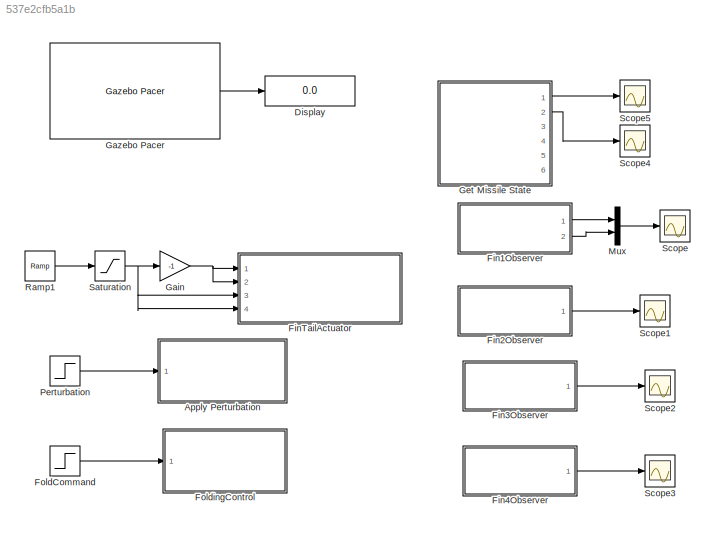
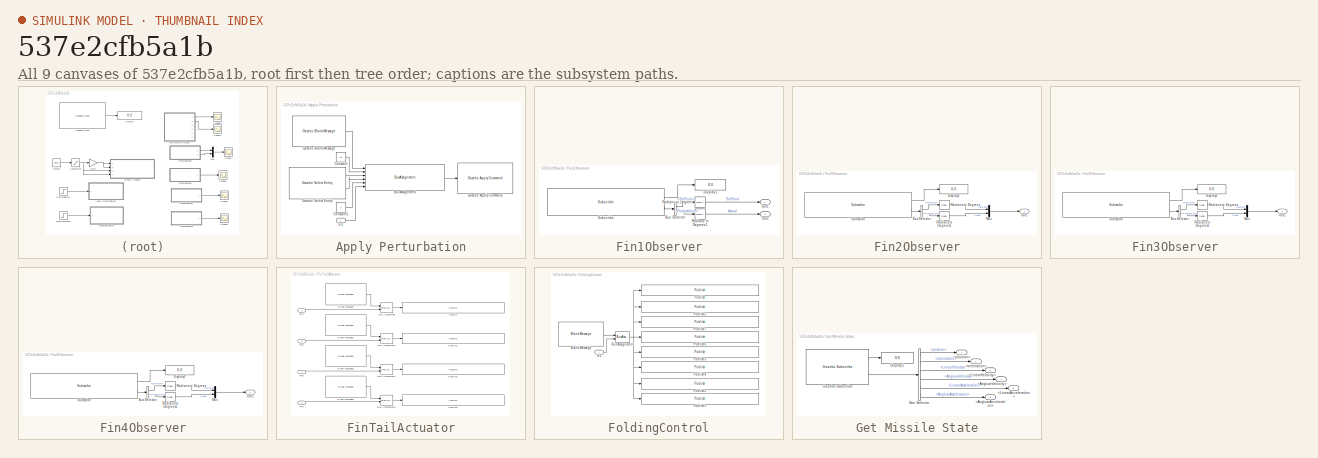
[diagram: thumbnail index - all 9 canvases of the model, root first then tree order]
MODEL slx_537e2cfb5a1b
KIND model
CONFIG AbsTol = auto
CONFIG EnableMultiTasking = off
CONFIG FixedStep = 0.001
CONFIG MaxStep = auto
CONFIG MinStep = auto
CONFIG RelTol = 1e-3
CONFIG SampleTimeConstraint = Unconstrained
CONFIG SolverName = FixedStepAuto
CONFIG StartTime = 0.0
CONFIG StopTime = 2
BLOCK [SubSystem] Apply Perturbation
  Ports = [1]
  RequestExecContextInheritance = off
BLOCK [BusAssignment] Apply Perturbation/Bus Assignment
  AssignedSignals = duration.seconds,model_name,joint_name,index,effort
  Ports = [6, 1]
BLOCK [Constant] Apply Perturbation/Constant
  Value = 10
BLOCK [Constant] Apply Perturbation/Constant1
  OutDataTypeStr = uint32
  Value = 0
BLOCK [Reference] Apply Perturbation/Gazebo Apply Command  REF=robotgazebolib/Gazebo Apply Command
  Ports = [1]
  SourceBlock = robotgazebolib/Gazebo Apply Command
  SourceProductBaseCode = RO
  SourceType = Gazebo Apply Command
BLOCK [Reference] Apply Perturbation/Gazebo Blank Message  REF=robotgazebolib/Gazebo Blank Message
  Ports = [0, 1]
  SourceBlock = robotgazebolib/Gazebo Blank Message
  SourceProductBaseCode = RO
  SourceType = Gazebo Blank Message
BLOCK [Reference] Apply Perturbation/Gazebo Select Entity  REF=robotgazebolib/Gazebo Select Entity
  Ports = [0, 2]
  SourceBlock = robotgazebolib/Gazebo Select Entity
  SourceProductBaseCode = RO
  SourceType = Gazebo Select Entity
BLOCK [Inport] Apply Perturbation/In1
BLOCK [Display] Display
  Decimation = 1
  Ports = [1]
BLOCK [SubSystem] Fin1Observer
  Ports = [0, 2]
  RequestExecContextInheritance = off
BLOCK [BusSelector] Fin1Observer/Bus Selector
  OutputSignals = SetPoint,ProcessValue
  Ports = [1, 2]
BLOCK [Display] Fin1Observer/Display1
  Decimation = 1
  Ports = [1]
BLOCK [Outport] Fin1Observer/Out1
BLOCK [Outport] Fin1Observer/Out2
  Port = 2
BLOCK [Reference] Fin1Observer/Radians to Degrees  REF=simulink_extras/Transformations/Radians
to Degrees
  Ports = [1, 1]
  SourceBlock = simulink_extras/Transformations/Radians\nto Degrees
  SourceProductBaseCode = SL
  SourceType = RadiansToDegrees
BLOCK [Reference] Fin1Observer/Radians to Degrees1  REF=simulink_extras/Transformations/Radians
to Degrees
  Ports = [1, 1]
  SourceBlock = simulink_extras/Transformations/Radians\nto Degrees
  SourceProductBaseCode = SL
  SourceType = RadiansToDegrees
BLOCK [Reference] Fin1Observer/Subscribe  REF=robotlib/Subscribe
  Ports = [0, 2]
  SourceBlock = robotlib/Subscribe
  SourceProductBaseCode = RR
  SourceType = ROS Subscribe
BLOCK [SubSystem] Fin2Observer
  Ports = [0, 1]
  RequestExecContextInheritance = off
BLOCK [BusSelector] Fin2Observer/Bus Selector
  OutputSignals = SetPoint,ProcessValue
  Ports = [1, 2]
BLOCK [Display] Fin2Observer/Display1
  Decimation = 1
  Ports = [1]
BLOCK [Mux] Fin2Observer/Mux
  DisplayOption = bar
  Inputs = 2
  Ports = [2, 1]
BLOCK [Outport] Fin2Observer/Out1
BLOCK [Reference] Fin2Observer/Radians to Degrees  REF=simulink_extras/Transformations/Radians
to Degrees
  Ports = [1, 1]
  SourceBlock = simulink_extras/Transformations/Radians\nto Degrees
  SourceProductBaseCode = SL
  SourceType = RadiansToDegrees
BLOCK [Reference] Fin2Observer/Radians to Degrees1  REF=simulink_extras/Transformations/Radians
to Degrees
  Ports = [1, 1]
  SourceBlock = simulink_extras/Transformations/Radians\nto Degrees
  SourceProductBaseCode = SL
  SourceType = RadiansToDegrees
BLOCK [Reference] Fin2Observer/Subscribe  REF=robotlib/Subscribe
  Ports = [0, 2]
  SourceBlock = robotlib/Subscribe
  SourceProductBaseCode = RR
  SourceType = ROS Subscribe
BLOCK [SubSystem] Fin3Observer
  Ports = [0, 1]
  RequestExecContextInheritance = off
BLOCK [BusSelector] Fin3Observer/Bus Selector
  OutputSignals = SetPoint,ProcessValue
  Ports = [1, 2]
BLOCK [Display] Fin3Observer/Display1
  Decimation = 1
  Ports = [1]
BLOCK [Mux] Fin3Observer/Mux
  DisplayOption = bar
  Inputs = 2
  Ports = [2, 1]
BLOCK [Outport] Fin3Observer/Out1
BLOCK [Reference] Fin3Observer/Radians to Degrees  REF=simulink_extras/Transformations/Radians
to Degrees
  Ports = [1, 1]
  SourceBlock = simulink_extras/Transformations/Radians\nto Degrees
  SourceProductBaseCode = SL
  SourceType = RadiansToDegrees
BLOCK [Reference] Fin3Observer/Radians to Degrees1  REF=simulink_extras/Transformations/Radians
to Degrees
  Ports = [1, 1]
  SourceBlock = simulink_extras/Transformations/Radians\nto Degrees
  SourceProductBaseCode = SL
  SourceType = RadiansToDegrees
BLOCK [Reference] Fin3Observer/Subscribe  REF=robotlib/Subscribe
  Ports = [0, 2]
  SourceBlock = robotlib/Subscribe
  SourceProductBaseCode = RR
  SourceType = ROS Subscribe
BLOCK [SubSystem] Fin4Observer
  Ports = [0, 1]
  RequestExecContextInheritance = off
BLOCK [BusSelector] Fin4Observer/Bus Selector
  OutputSignals = SetPoint,ProcessValue
  Ports = [1, 2]
BLOCK [Display] Fin4Observer/Display1
  Decimation = 1
  Ports = [1]
BLOCK [Mux] Fin4Observer/Mux
  DisplayOption = bar
  Inputs = 2
  Ports = [2, 1]
BLOCK [Outport] Fin4Observer/Out1
BLOCK [Reference] Fin4Observer/Radians to Degrees  REF=simulink_extras/Transformations/Radians
to Degrees
  Ports = [1, 1]
  SourceBlock = simulink_extras/Transformations/Radians\nto Degrees
  SourceProductBaseCode = SL
  SourceType = RadiansToDegrees
BLOCK [Reference] Fin4Observer/Radians to Degrees1  REF=simulink_extras/Transformations/Radians
to Degrees
  Ports = [1, 1]
  SourceBlock = simulink_extras/Transformations/Radians\nto Degrees
  SourceProductBaseCode = SL
  SourceType = RadiansToDegrees
BLOCK [Reference] Fin4Observer/Subscribe  REF=robotlib/Subscribe
  Ports = [0, 2]
  SourceBlock = robotlib/Subscribe
  SourceProductBaseCode = RR
  SourceType = ROS Subscribe
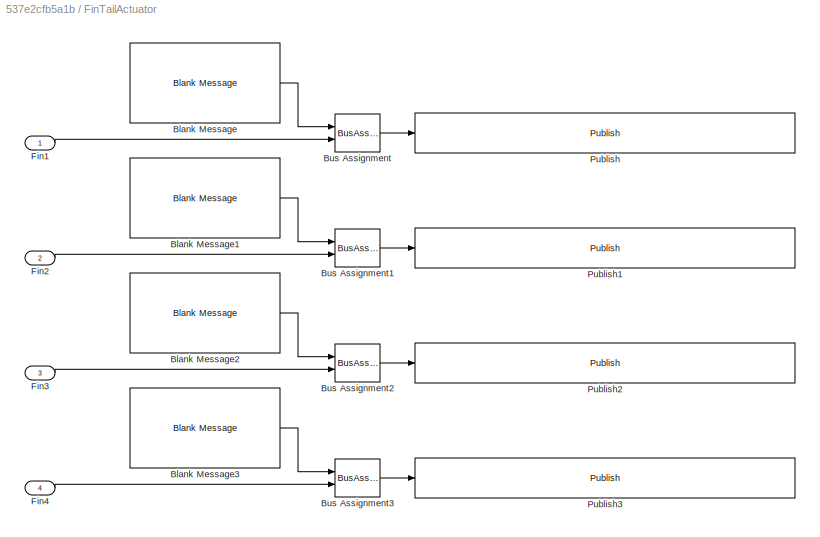
BLOCK [SubSystem] FinTailActuator
  Ports = [4]
  RequestExecContextInheritance = off
BLOCK [Reference] FinTailActuator/Blank Message  REF=robotlib/Blank Message
  Ports = [0, 1]
  SourceBlock = robotlib/Blank Message
  SourceProductBaseCode = RR
  SourceType = ROS Blank Message
BLOCK [Reference] FinTailActuator/Blank Message1  REF=robotlib/Blank Message
  Ports = [0, 1]
  SourceBlock = robotlib/Blank Message
  SourceProductBaseCode = RR
  SourceType = ROS Blank Message
BLOCK [Reference] FinTailActuator/Blank Message2  REF=robotlib/Blank Message
  Ports = [0, 1]
  SourceBlock = robotlib/Blank Message
  SourceProductBaseCode = RR
  SourceType = ROS Blank Message
BLOCK [Reference] FinTailActuator/Blank Message3  REF=robotlib/Blank Message
  Ports = [0, 1]
  SourceBlock = robotlib/Blank Message
  SourceProductBaseCode = RR
  SourceType = ROS Blank Message
BLOCK [BusAssignment] FinTailActuator/Bus Assignment
  AssignedSignals = Data
  Ports = [2, 1]
BLOCK [BusAssignment] FinTailActuator/Bus Assignment1
  AssignedSignals = Data
  Ports = [2, 1]
BLOCK [BusAssignment] FinTailActuator/Bus Assignment2
  AssignedSignals = Data
  Ports = [2, 1]
BLOCK [BusAssignment] FinTailActuator/Bus Assignment3
  AssignedSignals = Data
  Ports = [2, 1]
BLOCK [Inport] FinTailActuator/Fin1
BLOCK [Inport] FinTailActuator/Fin2
  Port = 2
BLOCK [Inport] FinTailActuator/Fin3
  Port = 3
BLOCK [Inport] FinTailActuator/Fin4
  Port = 4
BLOCK [Reference] FinTailActuator/Publish  REF=robotlib/Publish
  Ports = [1]
  SourceBlock = robotlib/Publish
  SourceProductBaseCode = RR
  SourceType = ROS Publish
BLOCK [Reference] FinTailActuator/Publish1  REF=robotlib/Publish
  Ports = [1]
  SourceBlock = robotlib/Publish
  SourceProductBaseCode = RR
  SourceType = ROS Publish
BLOCK [Reference] FinTailActuator/Publish2  REF=robotlib/Publish
  Ports = [1]
  SourceBlock = robotlib/Publish
  SourceProductBaseCode = RR
  SourceType = ROS Publish
BLOCK [Reference] FinTailActuator/Publish3  REF=robotlib/Publish
  Ports = [1]
  SourceBlock = robotlib/Publish
  SourceProductBaseCode = RR
  SourceType = ROS Publish
BLOCK [Step] FoldCommand
  After = 0
  Before = deg2rad(123)
  SampleTime = 0
  Time = 0.5
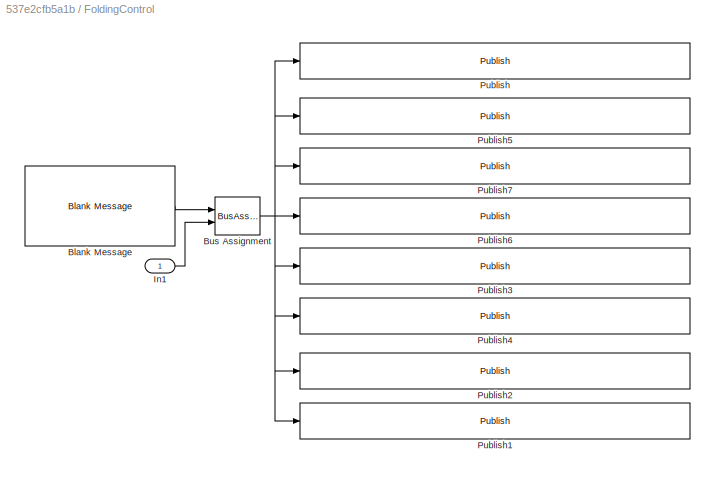
BLOCK [SubSystem] FoldingControl
  Ports = [1]
  RequestExecContextInheritance = off
BLOCK [Reference] FoldingControl/Blank Message  REF=robotlib/Blank Message
  Ports = [0, 1]
  SourceBlock = robotlib/Blank Message
  SourceProductBaseCode = RR
  SourceType = ROS Blank Message
BLOCK [BusAssignment] FoldingControl/Bus Assignment
  AssignedSignals = Data
  Ports = [2, 1]
BLOCK [Inport] FoldingControl/In1
BLOCK [Reference] FoldingControl/Publish  REF=robotlib/Publish
  Ports = [1]
  SourceBlock = robotlib/Publish
  SourceProductBaseCode = RR
  SourceType = ROS Publish
BLOCK [Reference] FoldingControl/Publish1  REF=robotlib/Publish
  Ports = [1]
  SourceBlock = robotlib/Publish
  SourceProductBaseCode = RR
  SourceType = ROS Publish
BLOCK [Reference] FoldingControl/Publish2  REF=robotlib/Publish
  Ports = [1]
  SourceBlock = robotlib/Publish
  SourceProductBaseCode = RR
  SourceType = ROS Publish
BLOCK [Reference] FoldingControl/Publish3  REF=robotlib/Publish
  Ports = [1]
  SourceBlock = robotlib/Publish
  SourceProductBaseCode = RR
  SourceType = ROS Publish
BLOCK [Reference] FoldingControl/Publish4  REF=robotlib/Publish
  Ports = [1]
  SourceBlock = robotlib/Publish
  SourceProductBaseCode = RR
  SourceType = ROS Publish
BLOCK [Reference] FoldingControl/Publish5  REF=robotlib/Publish
  Ports = [1]
  SourceBlock = robotlib/Publish
  SourceProductBaseCode = RR
  SourceType = ROS Publish
BLOCK [Reference] FoldingControl/Publish6  REF=robotlib/Publish
  Ports = [1]
  SourceBlock = robotlib/Publish
  SourceProductBaseCode = RR
  SourceType = ROS Publish
BLOCK [Reference] FoldingControl/Publish7  REF=robotlib/Publish
  Ports = [1]
  SourceBlock = robotlib/Publish
  SourceProductBaseCode = RR
  SourceType = ROS Publish
BLOCK [Gain] Gain
  Gain = -1
BLOCK [Reference] Gazebo Pacer  REF=robotgazebolib/Gazebo Pacer
  Ports = [0, 1]
  SourceBlock = robotgazebolib/Gazebo Pacer
  SourceProductBaseCode = RO
  SourceType = Gazebo Pacer
BLOCK [SubSystem] Get Missile State
  Ports = [0, 6]
  RequestExecContextInheritance = off
BLOCK [Outport] Get Missile State/<AngluarAcceleration>
  Port = 6
BLOCK [Outport] Get Missile State/<AngluarVelocity>
  Port = 4
BLOCK [Outport] Get Missile State/<LinearAcceleration>
  Port = 5
BLOCK [Outport] Get Missile State/<LinearVelocity>
  Port = 3
BLOCK [Outport] Get Missile State/<orientation>
  Port = 2
BLOCK [Outport] Get Missile State/<position>
BLOCK [BusSelector] Get Missile State/Bus Selector
  OutputSignals = Pose.position,Pose.orientation,LinearVelocity,AngluarVelocity,LinearAcceleration,AngluarAcceleration
  Ports = [1, 6]
BLOCK [Display] Get Missile State/Display1
  Decimation = 1
  Ports = [1]
BLOCK [Reference] Get Missile State/Gazebo Subscribe  REF=robotgazebolib/Gazebo Subscribe
  Ports = [0, 2]
  SourceBlock = robotgazebolib/Gazebo Subscribe
  SourceProductBaseCode = RO
  SourceType = Gazebo Subscribe
BLOCK [Mux] Mux
  DisplayOption = bar
  Inputs = 2
  Ports = [2, 1]
BLOCK [Step] Perturbation
  After = 2000
  SampleTime = 0.001
  Time = 0.25
BLOCK [Reference] Ramp1  REF=simulink/Sources/Ramp
  Ports = [0, 1]
  SourceBlock = simulink/Sources/Ramp
  SourceProductBaseCode = SL
  SourceType = Ramp
BLOCK [Saturate] Saturation
  LowerLimit = -deg2rad(20)
  UpperLimit = deg2rad(20)
BLOCK [Scope] Scope
  Floating = off
  NumInputPorts = 1
  Ports = [1]
  ScopeSpecificationString = Simulink.scopes.TimeScopeBlockCfg('CurrentConfiguration', extmgr.ConfigurationSet(extmgr.Configuration('Core','General UI',true),extmgr.Configuration('Core','Source UI',true),extmgr.Configuration('Sources','WiredSimulink',true),extmgr.Configuration('Visuals','Time Domain',true,'SerializedDisplays',{struct('MinYLimReal','-24.17317','MaxYLimReal','17.55853','YLabelReal','','MinYLimMag','0.00000','Ma...<+1378ch>
BLOCK [Scope] Scope1
  Floating = off
  NumInputPorts = 1
  Ports = [1]
  ScopeSpecificationString = Simulink.scopes.TimeScopeBlockCfg('CurrentConfiguration', extmgr.ConfigurationSet(extmgr.Configuration('Core','General UI',true),extmgr.Configuration('Core','Source UI',true),extmgr.Configuration('Sources','WiredSimulink',true,'DataLoggingVariableName','ScopeData1'),extmgr.Configuration('Visuals','Time Domain',true,'SerializedDisplays',{struct('MinYLimReal','-1.00000','MaxYLimReal','1.00000','YLab...<+1414ch>
BLOCK [Scope] Scope2
  Floating = off
  NumInputPorts = 1
  Ports = [1]
  ScopeSpecificationString = Simulink.scopes.TimeScopeBlockCfg('CurrentConfiguration', extmgr.ConfigurationSet(extmgr.Configuration('Core','General UI',true),extmgr.Configuration('Core','Source UI',true),extmgr.Configuration('Sources','WiredSimulink',true,'DataLoggingVariableName','ScopeData2'),extmgr.Configuration('Visuals','Time Domain',true,'SerializedDisplays',{struct('MinYLimReal','-2.50792','MaxYLimReal','22.5022','YLab...<+1415ch>
BLOCK [Scope] Scope3
  Floating = off
  NumInputPorts = 1
  Ports = [1]
  ScopeSpecificationString = Simulink.scopes.TimeScopeBlockCfg('CurrentConfiguration', extmgr.ConfigurationSet(extmgr.Configuration('Core','General UI',true),extmgr.Configuration('Core','Source UI',true),extmgr.Configuration('Sources','WiredSimulink',true,'DataLoggingVariableName','ScopeData3'),extmgr.Configuration('Visuals','Time Domain',true,'SerializedDisplays',{struct('MinYLimReal','-1.00000','MaxYLimReal','1.00000','YLab...<+1439ch>
BLOCK [Scope] Scope4
  Floating = off
  NumInputPorts = 1
  Ports = [1]
  ScopeSpecificationString = Simulink.scopes.TimeScopeBlockCfg('CurrentConfiguration', extmgr.ConfigurationSet(extmgr.Configuration('Core','General UI',true),extmgr.Configuration('Core','Source UI',true),extmgr.Configuration('Sources','WiredSimulink',true,'DataLoggingVariableName','ScopeData4'),extmgr.Configuration('Visuals','Time Domain',true,'SerializedDisplays',{struct('MinYLimReal','-0.88463','MaxYLimReal','0.88464','YLab...<+1541ch>
BLOCK [Scope] Scope5
  Floating = off
  NumInputPorts = 1
  Ports = [1]
  ScopeSpecificationString = Simulink.scopes.TimeScopeBlockCfg('CurrentConfiguration', extmgr.ConfigurationSet(extmgr.Configuration('Core','General UI',true),extmgr.Configuration('Core','Source UI',true),extmgr.Configuration('Sources','WiredSimulink',true,'DataLoggingVariableName','ScopeData5'),extmgr.Configuration('Visuals','Time Domain',true,'SerializedDisplays',{struct('MinYLimReal','-0.24206','MaxYLimReal','2.11923','YLab...<+1498ch>
LINE Apply Perturbation/Bus Assignment:1 -> Apply Perturbation/Gazebo Apply Command:1
LINE Apply Perturbation/Constant1:1 -> Apply Perturbation/Bus Assignment:5
LINE Apply Perturbation/Constant:1 -> Apply Perturbation/Bus Assignment:2
LINE Apply Perturbation/Gazebo Blank Message:1 -> Apply Perturbation/Bus Assignment:1
LINE Apply Perturbation/Gazebo Select Entity:1 -> Apply Perturbation/Bus Assignment:3
LINE Apply Perturbation/Gazebo Select Entity:2 -> Apply Perturbation/Bus Assignment:4
LINE Apply Perturbation/In1:1 -> Apply Perturbation/Bus Assignment:6
LINE Fin1Observer/Bus Selector:1 -> Fin1Observer/Radians to Degrees:1
LINE Fin1Observer/Bus Selector:2 -> Fin1Observer/Radians to Degrees1:1
LINE Fin1Observer/Radians to Degrees1:1 -> Fin1Observer/Out2:1
LINE Fin1Observer/Radians to Degrees:1 -> Fin1Observer/Out1:1
LINE Fin1Observer/Subscribe:1 -> Fin1Observer/Display1:1
LINE Fin1Observer/Subscribe:2 -> Fin1Observer/Bus Selector:1
LINE Fin1Observer:1 -> Mux:1
LINE Fin1Observer:2 -> Mux:2
LINE Fin2Observer/Bus Selector:1 -> Fin2Observer/Radians to Degrees:1
LINE Fin2Observer/Bus Selector:2 -> Fin2Observer/Radians to Degrees1:1
LINE Fin2Observer/Mux:1 -> Fin2Observer/Out1:1
LINE Fin2Observer/Radians to Degrees1:1 -> Fin2Observer/Mux:2
LINE Fin2Observer/Radians to Degrees:1 -> Fin2Observer/Mux:1
LINE Fin2Observer/Subscribe:1 -> Fin2Observer/Display1:1
LINE Fin2Observer/Subscribe:2 -> Fin2Observer/Bus Selector:1
LINE Fin2Observer:1 -> Scope1:1
LINE Fin3Observer/Bus Selector:1 -> Fin3Observer/Radians to Degrees:1
LINE Fin3Observer/Bus Selector:2 -> Fin3Observer/Radians to Degrees1:1
LINE Fin3Observer/Mux:1 -> Fin3Observer/Out1:1
LINE Fin3Observer/Radians to Degrees1:1 -> Fin3Observer/Mux:2
LINE Fin3Observer/Radians to Degrees:1 -> Fin3Observer/Mux:1
LINE Fin3Observer/Subscribe:1 -> Fin3Observer/Display1:1
LINE Fin3Observer/Subscribe:2 -> Fin3Observer/Bus Selector:1
LINE Fin3Observer:1 -> Scope2:1
LINE Fin4Observer/Bus Selector:1 -> Fin4Observer/Radians to Degrees:1
LINE Fin4Observer/Bus Selector:2 -> Fin4Observer/Radians to Degrees1:1
LINE Fin4Observer/Mux:1 -> Fin4Observer/Out1:1
LINE Fin4Observer/Radians to Degrees1:1 -> Fin4Observer/Mux:2
LINE Fin4Observer/Radians to Degrees:1 -> Fin4Observer/Mux:1
LINE Fin4Observer/Subscribe:1 -> Fin4Observer/Display1:1
LINE Fin4Observer/Subscribe:2 -> Fin4Observer/Bus Selector:1
LINE Fin4Observer:1 -> Scope3:1
LINE FinTailActuator/Blank Message1:1 -> FinTailActuator/Bus Assignment1:1
LINE FinTailActuator/Blank Message2:1 -> FinTailActuator/Bus Assignment2:1
LINE FinTailActuator/Blank Message3:1 -> FinTailActuator/Bus Assignment3:1
LINE FinTailActuator/Blank Message:1 -> FinTailActuator/Bus Assignment:1
LINE FinTailActuator/Bus Assignment1:1 -> FinTailActuator/Publish1:1
LINE FinTailActuator/Bus Assignment2:1 -> FinTailActuator/Publish2:1
LINE FinTailActuator/Bus Assignment3:1 -> FinTailActuator/Publish3:1
LINE FinTailActuator/Bus Assignment:1 -> FinTailActuator/Publish:1
LINE FinTailActuator/Fin1:1 -> FinTailActuator/Bus Assignment:2
LINE FinTailActuator/Fin2:1 -> FinTailActuator/Bus Assignment1:2
LINE FinTailActuator/Fin3:1 -> FinTailActuator/Bus Assignment2:2
LINE FinTailActuator/Fin4:1 -> FinTailActuator/Bus Assignment3:2
LINE FoldCommand:1 -> FoldingControl:1
LINE FoldingControl/Blank Message:1 -> FoldingControl/Bus Assignment:1
NET FoldingControl/Bus Assignment:1 -> FoldingControl/Publish1:1, FoldingControl/Publish2:1, FoldingControl/Publish3:1, FoldingControl/Publish4:1, FoldingControl/Publish5:1, FoldingControl/Publish6:1, FoldingControl/Publish7:1, FoldingControl/Publish:1
LINE FoldingControl/In1:1 -> FoldingControl/Bus Assignment:2
NET Gain:1 -> FinTailActuator:1, FinTailActuator:2
LINE Gazebo Pacer:1 -> Display:1
LINE Get Missile State/Bus Selector:1 -> Get Missile State/<position>:1
LINE Get Missile State/Bus Selector:2 -> Get Missile State/<orientation>:1
LINE Get Missile State/Bus Selector:3 -> Get Missile State/<LinearVelocity>:1
LINE Get Missile State/Bus Selector:4 -> Get Missile State/<AngluarVelocity>:1
LINE Get Missile State/Bus Selector:5 -> Get Missile State/<LinearAcceleration>:1
LINE Get Missile State/Bus Selector:6 -> Get Missile State/<AngluarAcceleration>:1
LINE Get Missile State/Gazebo Subscribe:1 -> Get Missile State/Display1:1
LINE Get Missile State/Gazebo Subscribe:2 -> Get Missile State/Bus Selector:1
LINE Get Missile State:1 -> Scope5:1
LINE Get Missile State:2 -> Scope4:1
LINE Mux:1 -> Scope:1
LINE Perturbation:1 -> Apply Perturbation:1
LINE Ramp1:1 -> Saturation:1
NET Saturation:1 -> FinTailActuator:3, FinTailActuator:4, Gain:1
note: NET lines group one-source signal fan-out (src -> all destinations, sorted); 1:1 wires keep LINE
